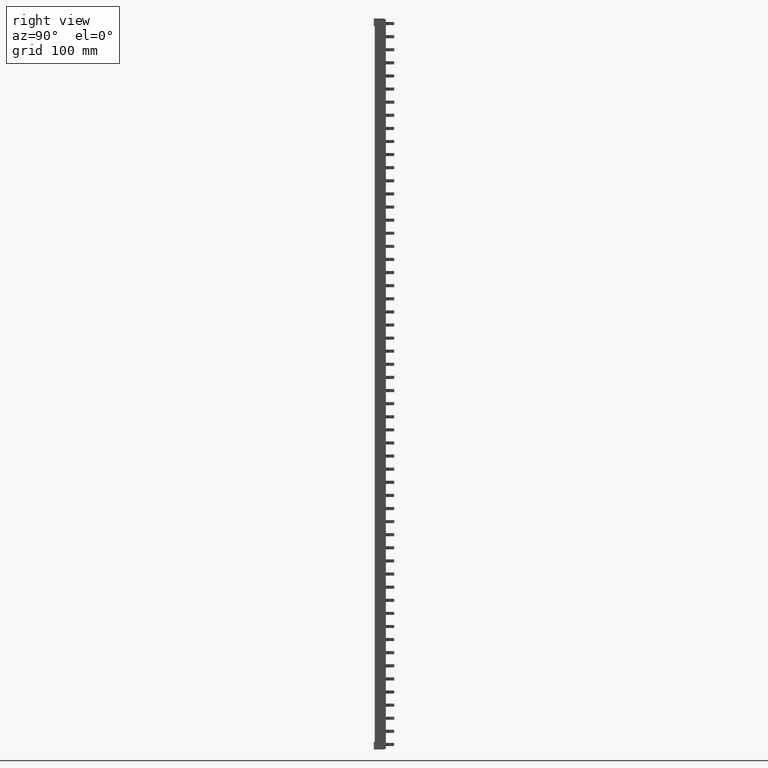
[diagram: clean part render]
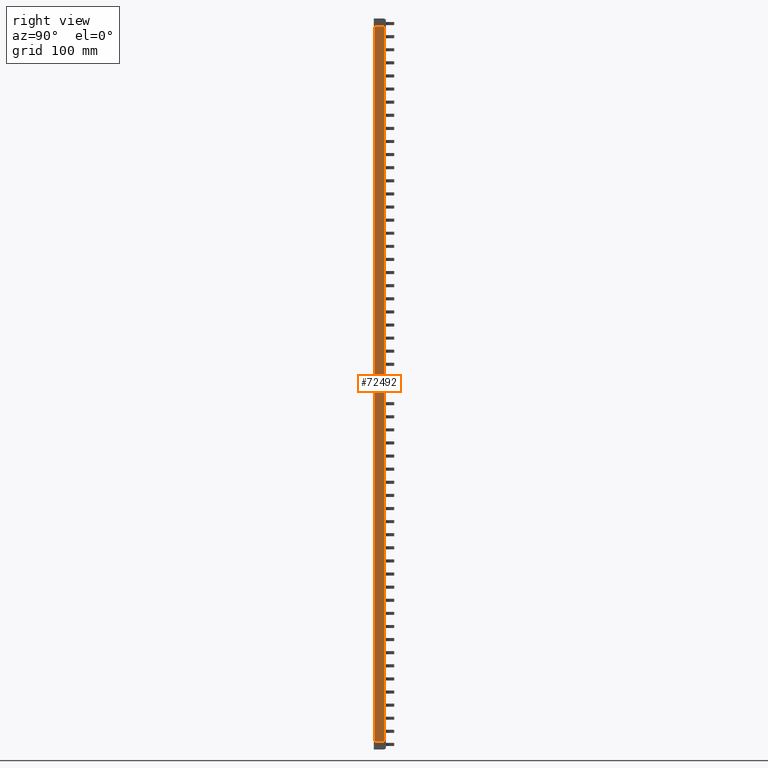
[diagram: same view with one face highlighted and labeled with its STEP entity id]
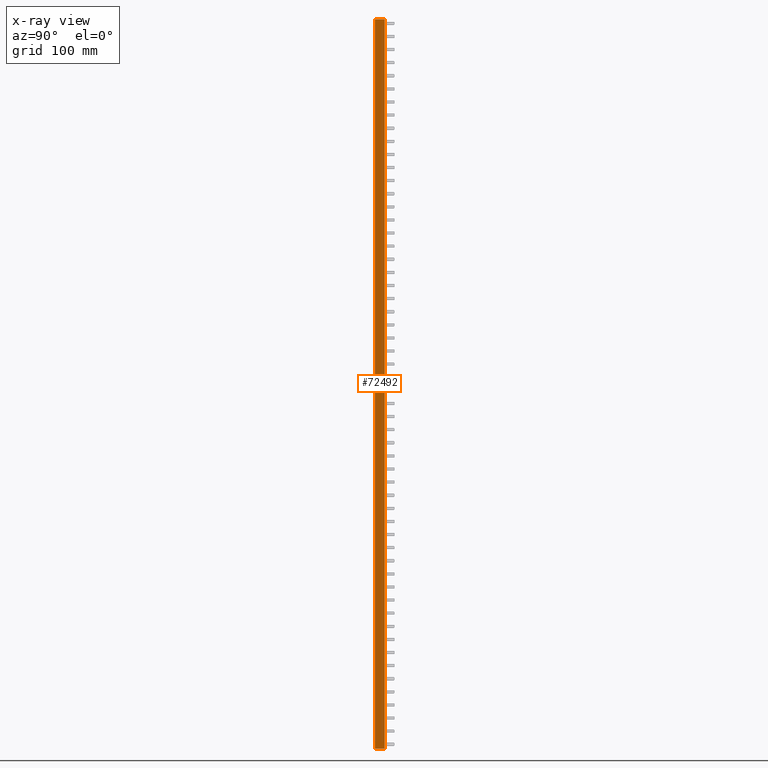
[diagram: x-ray of the same camera — body ghosted, the highlighted face saturated]
A machine part, right view. The second image highlights one B-rep face of the part: STEP entity #72492.
The next image is the same camera in x-ray: the body ghosted, the highlighted face saturated — about 0% of this face is hidden behind the body in this view.
In plain terms, the highlighted planar face has unit normal (1, -0, 0).
Its self-contained STEP definition (entity closure, byte-faithful):
#16206 = VECTOR ( 'NONE', #64497, 1000.000000000000000 ) ;
#18049 = PLANE ( 'NONE',  #36628 ) ;
#18055 = CARTESIAN_POINT ( 'NONE',  ( 9.599999999999830900, 0.0000000000000000000, -772.2000000000000500 ) ) ;
#18064 = FACE_OUTER_BOUND ( 'NONE', #87261, .T. ) ;
#18065 = DIRECTION ( 'NONE',  ( 1.000000000000000000, -0.0000000000000000000, 0.0000000000000000000 ) ) ;
#18070 = DIRECTION ( 'NONE',  ( 0.0000000000000000000, 0.0000000000000000000, -1.000000000000000000 ) ) ;
#27968 = EDGE_CURVE ( 'NONE', #79192, #79134, #44966, .T. ) ;
#34637 = VECTOR ( 'NONE', #44937, 1000.000000000000000 ) ;
#35420 = EDGE_CURVE ( 'NONE', #79124, #79117, #64544, .T. ) ;
#36628 = AXIS2_PLACEMENT_3D ( 'NONE', #18055, #18065, #18070 ) ;
#39089 = B_SPLINE_CURVE_WITH_KNOTS ( 'NONE', 3,
 ( #82701, #82778, #82831, #82803 ),
 .UNSPECIFIED., .F., .F.,
 ( 4, 4 ),
 ( 2.228579739512284600E-017, 1.270203591701248200E-005 ),
 .UNSPECIFIED. ) ;
#39091 = B_SPLINE_CURVE_WITH_KNOTS ( 'NONE', 3,
 ( #82694, #82771, #82718, #82697 ),
 .UNSPECIFIED., .F., .F.,
 ( 4, 4 ),
 ( 1.755221673300361200E-017, 1.270203467697746200E-005 ),
 .UNSPECIFIED. ) ;
#39351 = ORIENTED_EDGE ( 'NONE', *, *, #85603, .T. ) ;
#39358 = ORIENTED_EDGE ( 'NONE', *, *, #85701, .T. ) ;
#39371 = ORIENTED_EDGE ( 'NONE', *, *, #35420, .F. ) ;
#39389 = ORIENTED_EDGE ( 'NONE', *, *, #85651, .T. ) ;
#39436 = ORIENTED_EDGE ( 'NONE', *, *, #85705, .T. ) ;
#39460 = ORIENTED_EDGE ( 'NONE', *, *, #27968, .T. ) ;
#44937 = DIRECTION ( 'NONE',  ( 0.0000000000000000000, 1.000000000000000000, 0.0000000000000000000 ) ) ;
#44956 = CARTESIAN_POINT ( 'NONE',  ( 9.599999999999830900, 0.0000000000000000000, -769.8000000000054100 ) ) ;
#44966 = LINE ( 'NONE', #44956, #34637 ) ;
#58174 = CARTESIAN_POINT ( 'NONE',  ( 9.599999999999830900, 13.49999999999998400, 217.7999999999934200 ) ) ;
#58216 = CARTESIAN_POINT ( 'NONE',  ( 9.599999999999829100, -3.526380721767800200E-014, 217.7999030758346100 ) ) ;
#58218 = CARTESIAN_POINT ( 'NONE',  ( 9.599999999999829100, -2.378715131874400500E-014, -769.7999030758292100 ) ) ;
#58238 = CARTESIAN_POINT ( 'NONE',  ( 9.599999999999830900, 13.49999999999998400, -769.8000000000057500 ) ) ;
#58270 = CARTESIAN_POINT ( 'NONE',  ( 9.599999999999830900, 0.01270166487674905100, 217.7999999999933900 ) ) ;
#58392 = CARTESIAN_POINT ( 'NONE',  ( 9.599999999999830900, 0.01270166611668516900, -769.8000000000065500 ) ) ;
#64497 = DIRECTION ( 'NONE',  ( -0.0000000000000000000, 0.0000000000000000000, 1.000000000000000000 ) ) ;
#64501 = CARTESIAN_POINT ( 'NONE',  ( 9.599999999999827300, 0.0000000000000000000, 217.7999999999999800 ) ) ;
#64544 = LINE ( 'NONE', #64501, #16206 ) ;
#72492 = ADVANCED_FACE ( 'NONE', ( #18064 ), #18049, .T. ) ;
#79107 = VERTEX_POINT ( 'NONE', #58174 ) ;
#79117 = VERTEX_POINT ( 'NONE', #58216 ) ;
#79124 = VERTEX_POINT ( 'NONE', #58218 ) ;
#79134 = VERTEX_POINT ( 'NONE', #58238 ) ;
#79142 = VERTEX_POINT ( 'NONE', #58270 ) ;
#79192 = VERTEX_POINT ( 'NONE', #58392 ) ;
#80261 = VECTOR ( 'NONE', #81980, 1000.000000000000000 ) ;
#80310 = VECTOR ( 'NONE', #82284, 1000.000000000000000 ) ;
#81944 = LINE ( 'NONE', #81963, #80261 ) ;
#81963 = CARTESIAN_POINT ( 'NONE',  ( 9.599999999999830900, 13.49999999999998400, -772.2000000000000500 ) ) ;
#81980 = DIRECTION ( 'NONE',  ( -0.0000000000000000000, -0.0000000000000000000, 1.000000000000000000 ) ) ;
#82278 = LINE ( 'NONE', #82313, #80310 ) ;
#82284 = DIRECTION ( 'NONE',  ( -0.0000000000000000000, -1.000000000000000000, -0.0000000000000000000 ) ) ;
#82313 = CARTESIAN_POINT ( 'NONE',  ( 9.599999999999830900, 0.0000000000000000000, 217.7999999999934200 ) ) ;
#82694 = CARTESIAN_POINT ( 'NONE',  ( 9.599999999999830900, 0.01270166487674905100, 217.7999999999933900 ) ) ;
#82697 = CARTESIAN_POINT ( 'NONE',  ( 9.599999999999829100, -3.526380721767800200E-014, 217.7999030758346100 ) ) ;
#82701 = CARTESIAN_POINT ( 'NONE',  ( 9.599999999999829100, -2.378715131874400500E-014, -769.7999030758292100 ) ) ;
#82718 = CARTESIAN_POINT ( 'NONE',  ( 9.599999999999830900, 0.004233506201402367600, 217.7999684908471900 ) ) ;
#82771 = CARTESIAN_POINT ( 'NONE',  ( 9.599999999999830900, 0.008467653317762573500, 217.7999999999933600 ) ) ;
#82778 = CARTESIAN_POINT ( 'NONE',  ( 9.599999999999830900, 0.004233506614941547100, -769.7999684908545500 ) ) ;
#82803 = CARTESIAN_POINT ( 'NONE',  ( 9.599999999999830900, 0.01270166611668516900, -769.8000000000065500 ) ) ;
#82831 = CARTESIAN_POINT ( 'NONE',  ( 9.599999999999830900, 0.008467654145003476000, -769.8000000000065500 ) ) ;
#85603 = EDGE_CURVE ( 'NONE', #79134, #79107, #81944, .T. ) ;
#85651 = EDGE_CURVE ( 'NONE', #79107, #79142, #82278, .T. ) ;
#85701 = EDGE_CURVE ( 'NONE', #79142, #79117, #39091, .T. ) ;
#85705 = EDGE_CURVE ( 'NONE', #79124, #79192, #39089, .T. ) ;
#87261 = EDGE_LOOP ( 'NONE', ( #39358, #39371, #39436, #39460, #39351, #39389 ) ) ;